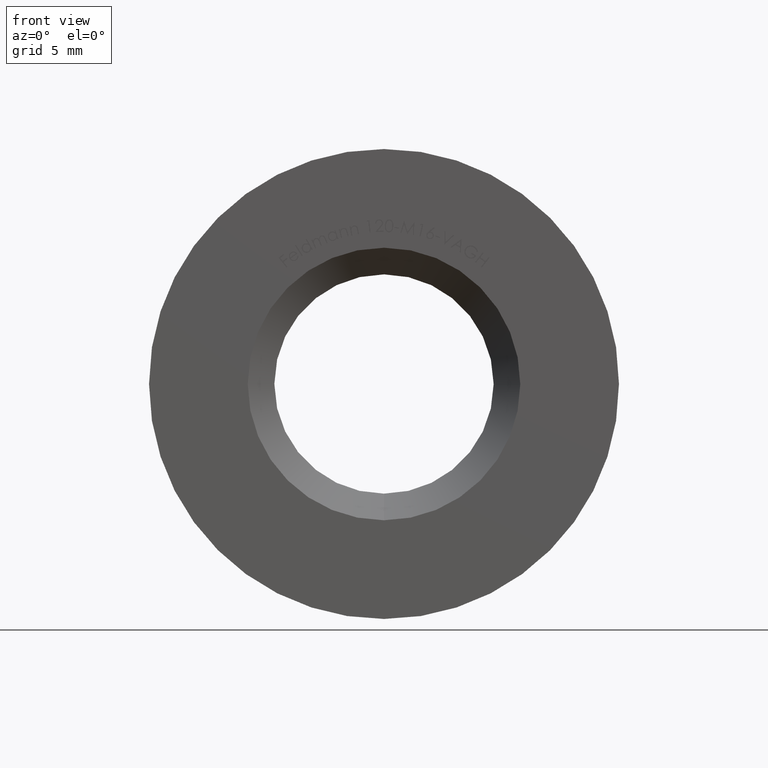
[diagram: clean part render]
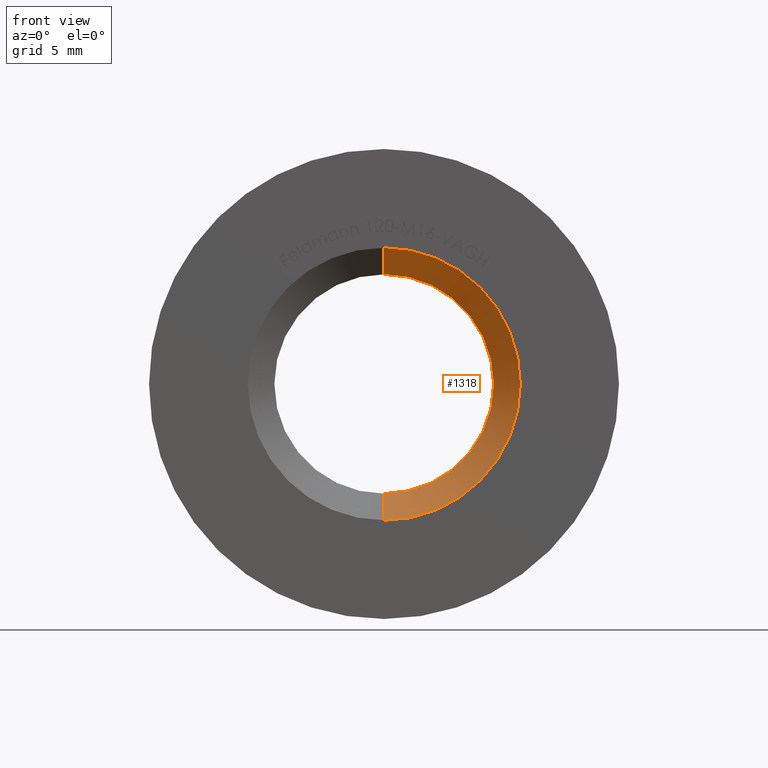
[diagram: same view with one face highlighted and labeled with its STEP entity id]
A machine part, front view. The second image highlights one B-rep face of the part: STEP entity #1318.
In plain terms, the highlighted conical surface has half-angle 45 deg.
Its self-contained STEP definition (entity closure, byte-faithful):
#1196 = CARTESIAN_POINT ( 'NONE',  ( -6.123233995736770200E-016, 0.0000000000000000000, 0.0000000000000000000 ) ) ;
#1318 = ADVANCED_FACE ( 'NONE', ( #10629 ), #11965, .F. ) ;
#1756 = DIRECTION ( 'NONE',  ( 0.0000000000000000000, 0.0000000000000000000, -1.000000000000000000 ) ) ;
#2054 = ORIENTED_EDGE ( 'NONE', *, *, #9745, .T. ) ;
#2195 = DIRECTION ( 'NONE',  ( -0.0000000000000000000, 1.000000000000000000, -0.0000000000000000000 ) ) ;
#2611 = CIRCLE ( 'NONE', #12226, 8.699999999999994000 ) ;
#2712 = DIRECTION ( 'NONE',  ( 0.0000000000000000000, 0.0000000000000000000, 1.000000000000000000 ) ) ;
#2798 = DIRECTION ( 'NONE',  ( 8.659560562354910700E-017, -0.7071067811865493500, 0.7071067811865456900 ) ) ;
#2826 = CARTESIAN_POINT ( 'NONE',  ( -6.123233995736770200E-016, 1.700000000000007100, 0.0000000000000000000 ) ) ;
#3250 = VERTEX_POINT ( 'NONE', #5172 ) ;
#3770 = CARTESIAN_POINT ( 'NONE',  ( 2.449293598294697000E-016, 1.700000000000007100, 6.999999999999995600 ) ) ;
#3932 = ORIENTED_EDGE ( 'NONE', *, *, #6157, .F. ) ;
#3980 = VERTEX_POINT ( 'NONE', #11185 ) ;
#4615 = DIRECTION ( 'NONE',  ( -0.0000000000000000000, 1.000000000000000000, -0.0000000000000000000 ) ) ;
#4616 = CARTESIAN_POINT ( 'NONE',  ( -6.123233995736770200E-016, 1.700000000000007100, -6.999999999999995600 ) ) ;
#4653 = VECTOR ( 'NONE', #2798, 1000.000000000000000 ) ;
#4829 = CIRCLE ( 'NONE', #5178, 6.999999999999995600 ) ;
#5172 = CARTESIAN_POINT ( 'NONE',  ( -6.123233995736770200E-016, 0.0000000000000000000, -8.699999999999994000 ) ) ;
#5178 = AXIS2_PLACEMENT_3D ( 'NONE', #10784, #4615, #2712 ) ;
#5250 = ORIENTED_EDGE ( 'NONE', *, *, #9652, .F. ) ;
#5563 = AXIS2_PLACEMENT_3D ( 'NONE', #2826, #11316, #1756 ) ;
#6157 = EDGE_CURVE ( 'NONE', #11979, #3250, #2611, .T. ) ;
#6795 = DIRECTION ( 'NONE',  ( 0.0000000000000000000, -0.7071067811865493500, -0.7071067811865456900 ) ) ;
#7803 = LINE ( 'NONE', #3770, #4653 ) ;
#8193 = EDGE_LOOP ( 'NONE', ( #5250, #11674, #2054, #3932 ) ) ;
#8231 = EDGE_CURVE ( 'NONE', #3980, #9634, #4829, .T. ) ;
#8243 = LINE ( 'NONE', #4616, #9866 ) ;
#8920 = DIRECTION ( 'NONE',  ( 0.0000000000000000000, 0.0000000000000000000, 1.000000000000000000 ) ) ;
#9463 = CARTESIAN_POINT ( 'NONE',  ( 4.531193156845196300E-016, 0.0000000000000000000, 8.699999999999994000 ) ) ;
#9491 = CARTESIAN_POINT ( 'NONE',  ( -6.123233995736770200E-016, 1.700000000000007100, -6.999999999999995600 ) ) ;
#9634 = VERTEX_POINT ( 'NONE', #9491 ) ;
#9652 = EDGE_CURVE ( 'NONE', #3980, #11979, #7803, .T. ) ;
#9745 = EDGE_CURVE ( 'NONE', #9634, #3250, #8243, .T. ) ;
#9866 = VECTOR ( 'NONE', #6795, 1000.000000000000000 ) ;
#10629 = FACE_OUTER_BOUND ( 'NONE', #8193, .T. ) ;
#10784 = CARTESIAN_POINT ( 'NONE',  ( -6.123233995736770200E-016, 1.700000000000007100, 0.0000000000000000000 ) ) ;
#11185 = CARTESIAN_POINT ( 'NONE',  ( 3.490243377569946700E-016, 1.700000000000007100, 6.999999999999995600 ) ) ;
#11316 = DIRECTION ( 'NONE',  ( 0.0000000000000000000, -1.000000000000000000, 0.0000000000000000000 ) ) ;
#11674 = ORIENTED_EDGE ( 'NONE', *, *, #8231, .T. ) ;
#11965 = CONICAL_SURFACE ( 'NONE', #5563, 6.999999999999995600, 0.7853981633974457300 ) ;
#11979 = VERTEX_POINT ( 'NONE', #9463 ) ;
#12226 = AXIS2_PLACEMENT_3D ( 'NONE', #1196, #2195, #8920 ) ;